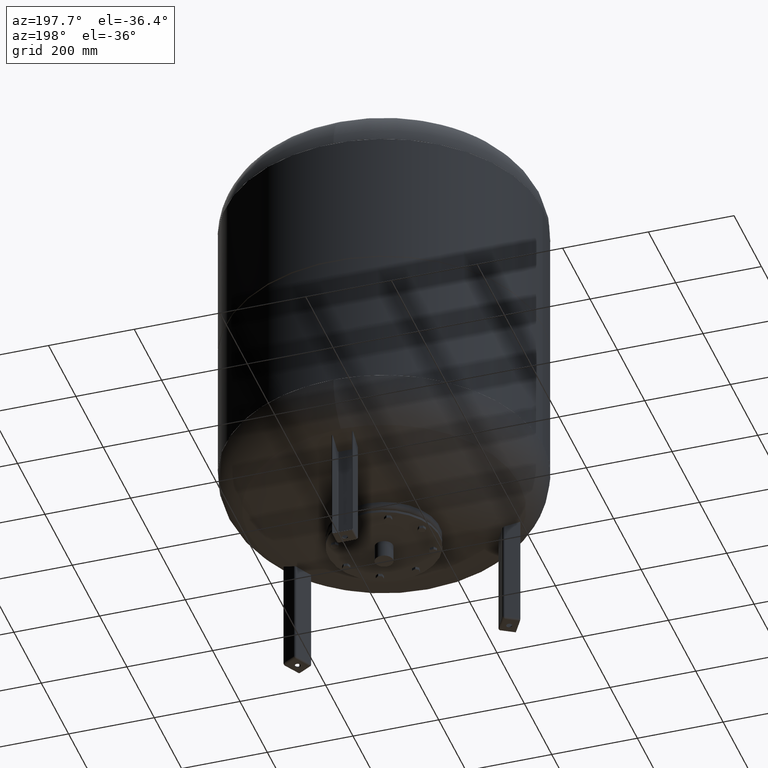
[diagram: clean part render]
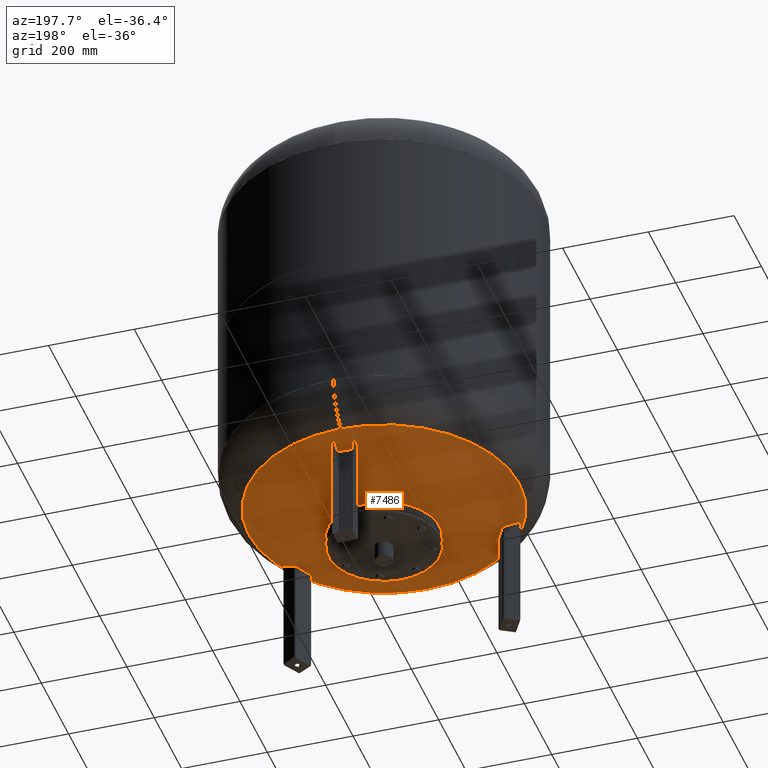
[diagram: same view with one face highlighted and labeled with its STEP entity id]
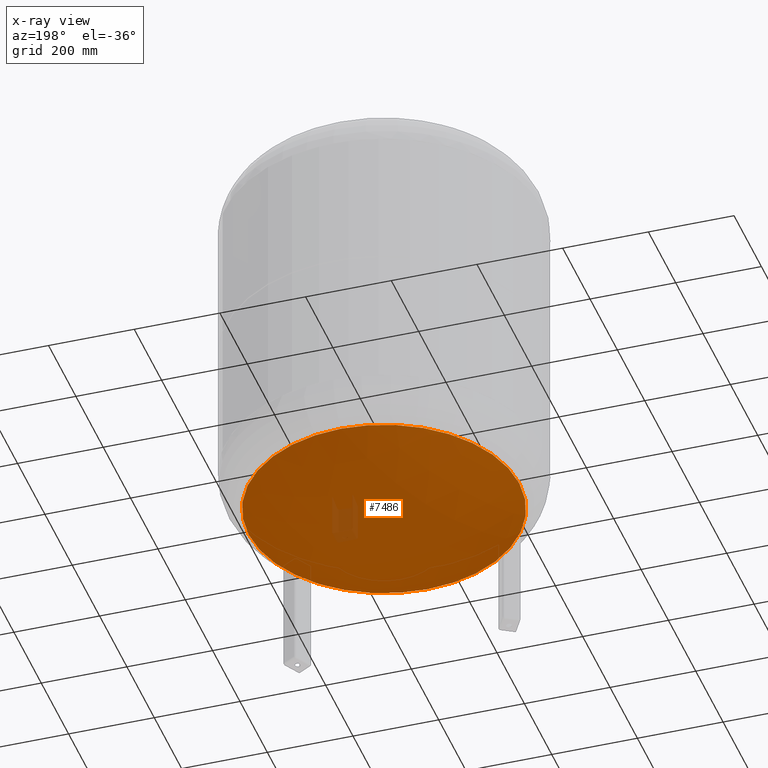
[diagram: x-ray of the same camera — body ghosted, the highlighted face saturated]
A machine part, auxiliary view. The second image highlights one B-rep face of the part: STEP entity #7486.
The next image is the same camera in x-ray: the body ghosted, the highlighted face saturated — about 2% of this face is hidden behind the body in this view.
In plain terms, the highlighted spherical surface has radius 594 mm.
Its self-contained STEP definition (entity closure, byte-faithful):
#7425=CARTESIAN_POINT('',(0.0,-315.931034482758610,276.985505725079410));
#7426=VERTEX_POINT('',#7425);
#7442=CARTESIAN_POINT('',(-3.868912E-014,315.931034482758610,276.985505725079630));
#7443=VERTEX_POINT('',#7442);
#7451=CARTESIAN_POINT('',(-315.931034482758610,-1.671377E-014,276.985505725079520));
#7452=VERTEX_POINT('',#7451);
#7453=CARTESIAN_POINT('',(0.0,-1.671377E-014,276.985505725079520));
#7454=DIRECTION('',(0.0,0.0,1.0));
#7455=DIRECTION('',(-1.0,0.0,0.0));
#7456=AXIS2_PLACEMENT_3D('',#7453,#7454,#7455);
#7457=CIRCLE('',#7456,315.931034482758610);
#7458=EDGE_CURVE('',#7443,#7452,#7457,.T.);
#7460=CARTESIAN_POINT('',(0.0,-1.671377E-014,276.985505725079520));
#7461=DIRECTION('',(0.0,0.0,1.0));
#7462=DIRECTION('',(-1.0,0.0,0.0));
#7463=AXIS2_PLACEMENT_3D('',#7460,#7461,#7462);
#7464=CIRCLE('',#7463,315.931034482758610);
#7465=EDGE_CURVE('',#7452,#7426,#7464,.T.);
#7470=CARTESIAN_POINT('',(0.0,-1.091160E-013,780.0));
#7471=DIRECTION('',(0.0,-1.0,0.0));
#7472=DIRECTION('',(1.0,0.0,0.0));
#7473=AXIS2_PLACEMENT_3D('',#7470,#7471,#7472);
#7474=SPHERICAL_SURFACE('',#7473,594.0);
#7475=ORIENTED_EDGE('',*,*,#7465,.F.);
#7476=ORIENTED_EDGE('',*,*,#7458,.F.);
#7477=CARTESIAN_POINT('',(0.0,-1.671377E-014,276.985505725079520));
#7478=DIRECTION('',(0.0,0.0,1.0));
#7479=DIRECTION('',(-1.0,0.0,0.0));
#7480=AXIS2_PLACEMENT_3D('',#7477,#7478,#7479);
#7481=CIRCLE('',#7480,315.931034482758610);
#7482=EDGE_CURVE('',#7426,#7443,#7481,.T.);
#7483=ORIENTED_EDGE('',*,*,#7482,.F.);
#7484=EDGE_LOOP('',(#7475,#7476,#7483));
#7485=FACE_OUTER_BOUND('',#7484,.T.);
#7486=ADVANCED_FACE('',(#7485),#7474,.T.);